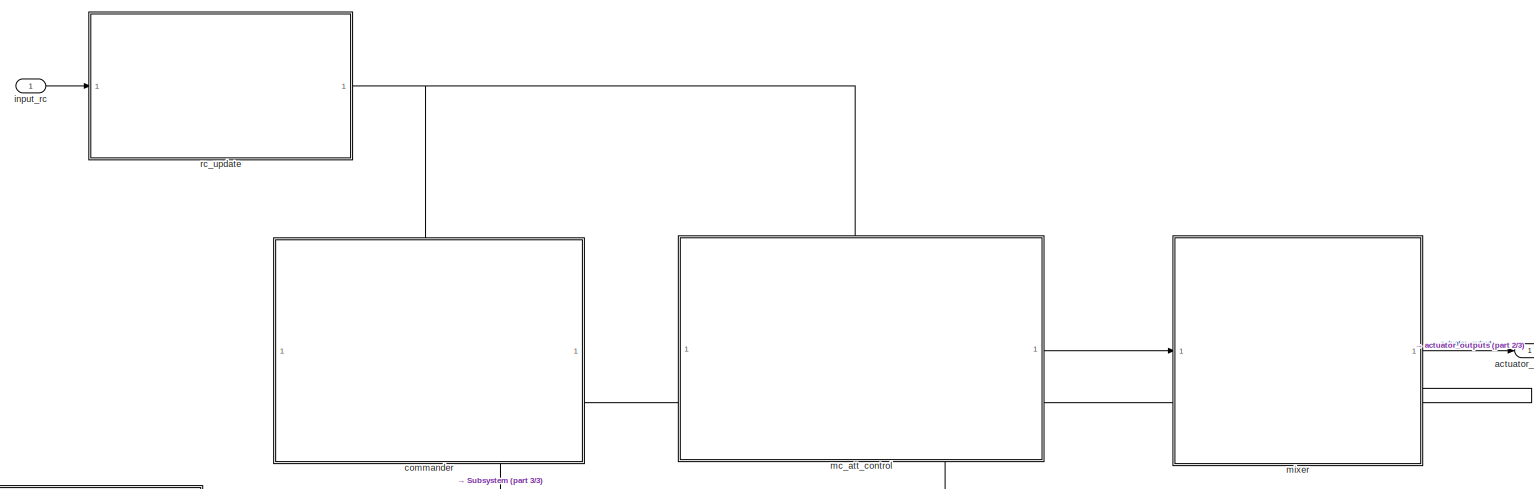
[diagram: root canvas - part 1/3, full width, middle band]
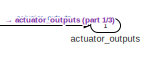
[diagram: root canvas - part 2/3, middle right region]
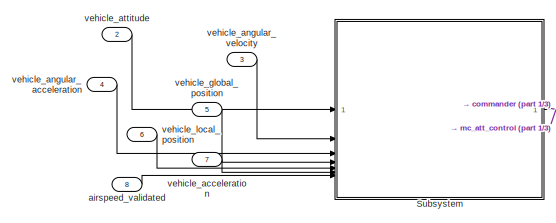
[diagram: root canvas - part 3/3, bottom left region]
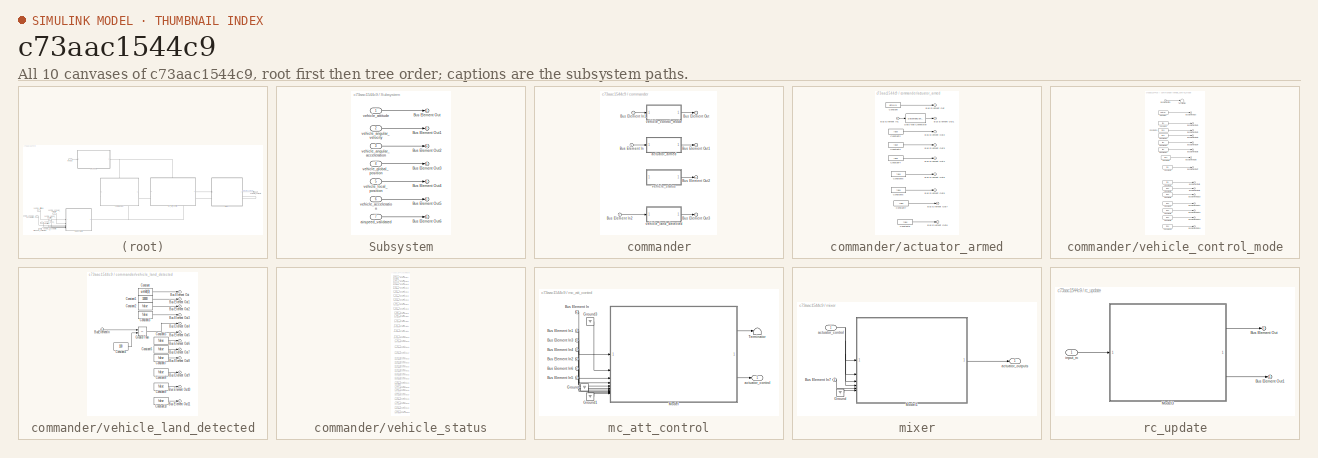
[diagram: thumbnail index - all 10 canvases of the model, root first then tree order]
MODEL slx_c73aac1544c9
KIND model
CONFIG AbsTol = auto
CONFIG EnableMultiTasking = off
CONFIG FixedStep = 0.005
CONFIG MaxStep = auto
CONFIG MinStep = auto
CONFIG RelTol = 1e-3
CONFIG SampleTimeConstraint = Unconstrained
CONFIG SolverName = FixedStepAuto
CONFIG StartTime = 0.0
CONFIG StopTime = 10.0
BLOCK [SubSystem] Subsystem
BLOCK [Outport] Subsystem/Bus Element Out
BLOCK [Outport] Subsystem/Bus Element Out1
BLOCK [Outport] Subsystem/Bus Element Out2
BLOCK [Outport] Subsystem/Bus Element Out3
BLOCK [Outport] Subsystem/Bus Element Out4
BLOCK [Outport] Subsystem/Bus Element Out5
BLOCK [Outport] Subsystem/Bus Element Out6
BLOCK [Inport] Subsystem/airspeed_validated
  Port = 7
BLOCK [Inport] Subsystem/vehicle_acceleration
  Port = 6
BLOCK [Inport] Subsystem/vehicle_angular_acceleration
  Port = 3
BLOCK [Inport] Subsystem/vehicle_angular_velocity
  Port = 2
BLOCK [Inport] Subsystem/vehicle_attitude
BLOCK [Inport] Subsystem/vehicle_global_position
  Port = 4
BLOCK [Inport] Subsystem/vehicle_local_position
  Port = 5
BLOCK [Outport] actuator_outputs
  OutDataTypeStr = Bus: actuator_outputs_s
BLOCK [Inport] airspeed_validated
  OutDataTypeStr = Bus: airspeed_validated_s
  Port = 8
BLOCK [SubSystem] commander
  PortSchema = {"entries":[{"content":{"sides":[{"content":{},"type":"ConnectorPlacement.EquallySpacedRectSide","uuid":"bb59bce1-0500-499a-a754-fb562466c3fb"},{"content":{"side":"RIGHT"},"type":"ConnectorPlacement.EquallySpacedRectSide","uuid":"d03be637-01f7-4508-9bed-614789f3ac84"},{"content":{"connectorIds":["In1"],"side":"TOP"},"type":"ConnectorPlacement.EquallySpacedRectSide","uuid":"40f04b52-742b-4cc1-b867-...<+355ch>
BLOCK [Inport] commander/Bus Element In
BLOCK [Inport] commander/Bus Element In1
BLOCK [Inport] commander/Bus Element In2
  Port = 2
BLOCK [Outport] commander/Bus Element Out
BLOCK [Outport] commander/Bus Element Out1
BLOCK [Outport] commander/Bus Element Out2
BLOCK [Outport] commander/Bus Element Out3
BLOCK [SubSystem] commander/actuator_armed
BLOCK [Inport] commander/actuator_armed/Bus Element In1
BLOCK [Outport] commander/actuator_armed/Bus Element Out
BLOCK [Outport] commander/actuator_armed/Bus Element Out1
BLOCK [Outport] commander/actuator_armed/Bus Element Out2
BLOCK [Outport] commander/actuator_armed/Bus Element Out3
BLOCK [Outport] commander/actuator_armed/Bus Element Out4
BLOCK [Outport] commander/actuator_armed/Bus Element Out5
BLOCK [Outport] commander/actuator_armed/Bus Element Out6
BLOCK [Outport] commander/actuator_armed/Bus Element Out7
BLOCK [Outport] commander/actuator_armed/Bus Element Out8
BLOCK [Constant] commander/actuator_armed/Constant
  Value = uint64(0)
BLOCK [Constant] commander/actuator_armed/Constant2
  Value = false
BLOCK [Constant] commander/actuator_armed/Constant3
  Value = false
BLOCK [Constant] commander/actuator_armed/Constant4
  Value = false
BLOCK [Constant] commander/actuator_armed/Constant5
  Value = false
BLOCK [Constant] commander/actuator_armed/Constant6
  Value = false
BLOCK [Constant] commander/actuator_armed/Constant7
  Value = false
BLOCK [Constant] commander/actuator_armed/Constant8
  Value = false
BLOCK [DataTypeConversion] commander/actuator_armed/Data Type Conversion
  RndMeth = Floor
  SaturateOnIntegerOverflow = off
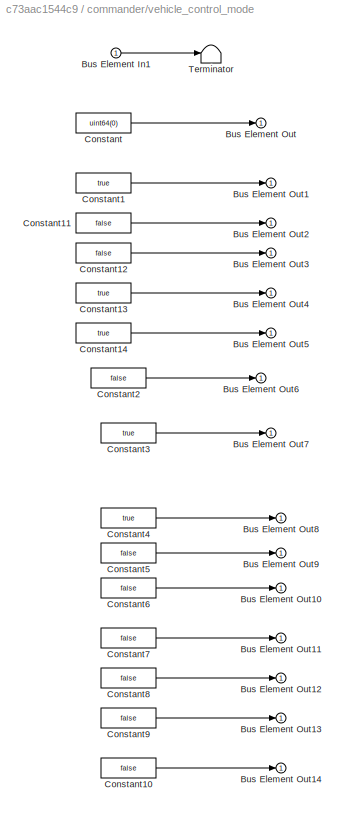
BLOCK [SubSystem] commander/vehicle_control_mode
BLOCK [Inport] commander/vehicle_control_mode/Bus Element In1
BLOCK [Outport] commander/vehicle_control_mode/Bus Element Out
BLOCK [Outport] commander/vehicle_control_mode/Bus Element Out1
BLOCK [Outport] commander/vehicle_control_mode/Bus Element Out10
BLOCK [Outport] commander/vehicle_control_mode/Bus Element Out11
BLOCK [Outport] commander/vehicle_control_mode/Bus Element Out12
BLOCK [Outport] commander/vehicle_control_mode/Bus Element Out13
BLOCK [Outport] commander/vehicle_control_mode/Bus Element Out14
BLOCK [Outport] commander/vehicle_control_mode/Bus Element Out2
BLOCK [Outport] commander/vehicle_control_mode/Bus Element Out3
BLOCK [Outport] commander/vehicle_control_mode/Bus Element Out4
BLOCK [Outport] commander/vehicle_control_mode/Bus Element Out5
BLOCK [Outport] commander/vehicle_control_mode/Bus Element Out6
BLOCK [Outport] commander/vehicle_control_mode/Bus Element Out7
BLOCK [Outport] commander/vehicle_control_mode/Bus Element Out8
BLOCK [Outport] commander/vehicle_control_mode/Bus Element Out9
BLOCK [Constant] commander/vehicle_control_mode/Constant
  Value = uint64(0)
BLOCK [Constant] commander/vehicle_control_mode/Constant1
  Value = true
BLOCK [Constant] commander/vehicle_control_mode/Constant10
  Value = false
BLOCK [Constant] commander/vehicle_control_mode/Constant11
  Value = false
BLOCK [Constant] commander/vehicle_control_mode/Constant12
  Value = false
BLOCK [Constant] commander/vehicle_control_mode/Constant13
  Value = true
BLOCK [Constant] commander/vehicle_control_mode/Constant14
  Value = true
BLOCK [Constant] commander/vehicle_control_mode/Constant2
  Value = false
BLOCK [Constant] commander/vehicle_control_mode/Constant3
  Value = true
BLOCK [Constant] commander/vehicle_control_mode/Constant4
  Value = true
BLOCK [Constant] commander/vehicle_control_mode/Constant5
  Value = false
BLOCK [Constant] commander/vehicle_control_mode/Constant6
  Value = false
BLOCK [Constant] commander/vehicle_control_mode/Constant7
  Value = false
BLOCK [Constant] commander/vehicle_control_mode/Constant8
  Value = false
BLOCK [Constant] commander/vehicle_control_mode/Constant9
  Value = false
BLOCK [Terminator] commander/vehicle_control_mode/Terminator
BLOCK [SubSystem] commander/vehicle_land_detected
BLOCK [Outport] commander/vehicle_land_detected/Bus Element Out
BLOCK [Outport] commander/vehicle_land_detected/Bus Element Out1
BLOCK [Outport] commander/vehicle_land_detected/Bus Element Out10
BLOCK [Outport] commander/vehicle_land_detected/Bus Element Out11
BLOCK [Outport] commander/vehicle_land_detected/Bus Element Out2
BLOCK [Outport] commander/vehicle_land_detected/Bus Element Out3
BLOCK [Outport] commander/vehicle_land_detected/Bus Element Out4
BLOCK [Outport] commander/vehicle_land_detected/Bus Element Out5
BLOCK [Outport] commander/vehicle_land_detected/Bus Element Out6
BLOCK [Outport] commander/vehicle_land_detected/Bus Element Out7
BLOCK [Outport] commander/vehicle_land_detected/Bus Element Out8
BLOCK [Outport] commander/vehicle_land_detected/Bus Element Out9
BLOCK [Inport] commander/vehicle_land_detected/BusElementIn
BLOCK [Constant] commander/vehicle_land_detected/Constant
  Value = uint64(0)
BLOCK [Constant] commander/vehicle_land_detected/Constant1
  OutDataTypeStr = single
  Value = 10000
BLOCK [Constant] commander/vehicle_land_detected/Constant10
  Value = false
BLOCK [Constant] commander/vehicle_land_detected/Constant2
  Value = false
BLOCK [Constant] commander/vehicle_land_detected/Constant3
  Value = false
BLOCK [Constant] commander/vehicle_land_detected/Constant4
  Value = 100
BLOCK [Constant] commander/vehicle_land_detected/Constant5
  Value = false
BLOCK [Constant] commander/vehicle_land_detected/Constant6
  Value = false
BLOCK [Constant] commander/vehicle_land_detected/Constant7
  Value = false
BLOCK [Constant] commander/vehicle_land_detected/Constant8
  Value = false
BLOCK [Constant] commander/vehicle_land_detected/Constant9
  Value = false
BLOCK [RelationalOperator] commander/vehicle_land_detected/GreaterThan
  InputSameDT = off
  Operator = <=
  OutDataTypeStr = boolean
  RndMeth = Simplest
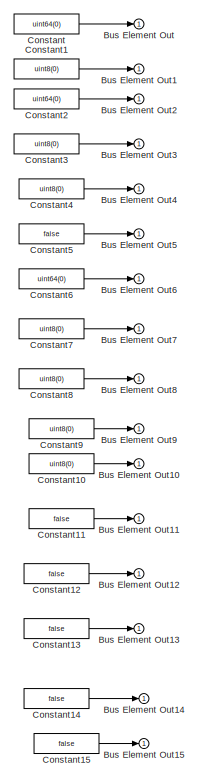
[diagram: commander/vehicle_status - part 1/2, full width, top band]
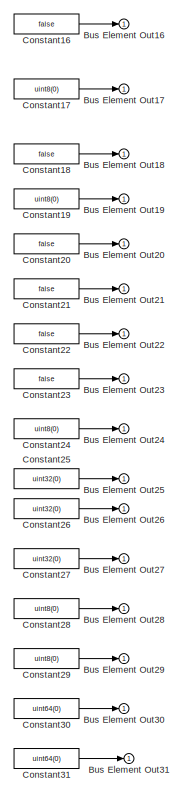
[diagram: commander/vehicle_status - part 2/2, full width, bottom band]
BLOCK [SubSystem] commander/vehicle_status
BLOCK [Outport] commander/vehicle_status/Bus Element Out
BLOCK [Outport] commander/vehicle_status/Bus Element Out1
BLOCK [Outport] commander/vehicle_status/Bus Element Out10
BLOCK [Outport] commander/vehicle_status/Bus Element Out11
BLOCK [Outport] commander/vehicle_status/Bus Element Out12
BLOCK [Outport] commander/vehicle_status/Bus Element Out13
BLOCK [Outport] commander/vehicle_status/Bus Element Out14
BLOCK [Outport] commander/vehicle_status/Bus Element Out15
BLOCK [Outport] commander/vehicle_status/Bus Element Out16
BLOCK [Outport] commander/vehicle_status/Bus Element Out17
BLOCK [Outport] commander/vehicle_status/Bus Element Out18
BLOCK [Outport] commander/vehicle_status/Bus Element Out19
BLOCK [Outport] commander/vehicle_status/Bus Element Out2
BLOCK [Outport] commander/vehicle_status/Bus Element Out20
BLOCK [Outport] commander/vehicle_status/Bus Element Out21
BLOCK [Outport] commander/vehicle_status/Bus Element Out22
BLOCK [Outport] commander/vehicle_status/Bus Element Out23
BLOCK [Outport] commander/vehicle_status/Bus Element Out24
BLOCK [Outport] commander/vehicle_status/Bus Element Out25
BLOCK [Outport] commander/vehicle_status/Bus Element Out26
BLOCK [Outport] commander/vehicle_status/Bus Element Out27
BLOCK [Outport] commander/vehicle_status/Bus Element Out28
BLOCK [Outport] commander/vehicle_status/Bus Element Out29
BLOCK [Outport] commander/vehicle_status/Bus Element Out3
BLOCK [Outport] commander/vehicle_status/Bus Element Out30
BLOCK [Outport] commander/vehicle_status/Bus Element Out31
BLOCK [Outport] commander/vehicle_status/Bus Element Out4
BLOCK [Outport] commander/vehicle_status/Bus Element Out5
BLOCK [Outport] commander/vehicle_status/Bus Element Out6
BLOCK [Outport] commander/vehicle_status/Bus Element Out7
BLOCK [Outport] commander/vehicle_status/Bus Element Out8
BLOCK [Outport] commander/vehicle_status/Bus Element Out9
BLOCK [Constant] commander/vehicle_status/Constant
  Value = uint64(0)
BLOCK [Constant] commander/vehicle_status/Constant1
  Value = uint8(0)
BLOCK [Constant] commander/vehicle_status/Constant10
  Value = uint8(0)
BLOCK [Constant] commander/vehicle_status/Constant11
  Value = false
BLOCK [Constant] commander/vehicle_status/Constant12
  Value = false
BLOCK [Constant] commander/vehicle_status/Constant13
  Value = false
BLOCK [Constant] commander/vehicle_status/Constant14
  Value = false
BLOCK [Constant] commander/vehicle_status/Constant15
  Value = false
BLOCK [Constant] commander/vehicle_status/Constant16
  Value = false
BLOCK [Constant] commander/vehicle_status/Constant17
  Value = uint8(0)
BLOCK [Constant] commander/vehicle_status/Constant18
  Value = false
BLOCK [Constant] commander/vehicle_status/Constant19
  Value = uint8(0)
BLOCK [Constant] commander/vehicle_status/Constant2
  Value = uint64(0)
BLOCK [Constant] commander/vehicle_status/Constant20
  Value = false
BLOCK [Constant] commander/vehicle_status/Constant21
  Value = false
BLOCK [Constant] commander/vehicle_status/Constant22
  Value = false
BLOCK [Constant] commander/vehicle_status/Constant23
  Value = false
BLOCK [Constant] commander/vehicle_status/Constant24
  Value = uint8(0)
BLOCK [Constant] commander/vehicle_status/Constant25
  Value = uint32(0)
BLOCK [Constant] commander/vehicle_status/Constant26
  Value = uint32(0)
BLOCK [Constant] commander/vehicle_status/Constant27
  Value = uint32(0)
BLOCK [Constant] commander/vehicle_status/Constant28
  Value = uint8(0)
BLOCK [Constant] commander/vehicle_status/Constant29
  Value = uint8(0)
BLOCK [Constant] commander/vehicle_status/Constant3
  Value = uint8(0)
BLOCK [Constant] commander/vehicle_status/Constant30
  Value = uint64(0)
BLOCK [Constant] commander/vehicle_status/Constant31
  Value = uint64(0)
BLOCK [Constant] commander/vehicle_status/Constant4
  Value = uint8(0)
BLOCK [Constant] commander/vehicle_status/Constant5
  Value = false
BLOCK [Constant] commander/vehicle_status/Constant6
  Value = uint64(0)
BLOCK [Constant] commander/vehicle_status/Constant7
  Value = uint8(0)
BLOCK [Constant] commander/vehicle_status/Constant8
  Value = uint8(0)
BLOCK [Constant] commander/vehicle_status/Constant9
  Value = uint8(0)
BLOCK [Inport] input_rc
  OutDataTypeStr = Bus: input_rc_s
BLOCK [SubSystem] mc_att_control
  PortSchema = {"entries":[{"content":{"sides":[{"content":{},"type":"ConnectorPlacement.EquallySpacedRectSide","uuid":"8cc7357a-ade9-4fca-b691-0bf58c66e2d0"},{"content":{"connectorIds":["Out1"],"side":"RIGHT"},"type":"ConnectorPlacement.EquallySpacedRectSide","uuid":"b5274986-9954-46fa-b3dc-c31aff903af8"},{"content":{"connectorIds":["In1"],"side":"TOP"},"type":"ConnectorPlacement.EquallySpacedRectSide","uuid":"...<+378ch>
BLOCK [Inport] mc_att_control/Bus Element In
BLOCK [Inport] mc_att_control/Bus Element In1
  Port = 3
BLOCK [Inport] mc_att_control/Bus Element In2
  Port = 2
BLOCK [Inport] mc_att_control/Bus Element In3
  Port = 3
BLOCK [Inport] mc_att_control/Bus Element In4
  Port = 3
BLOCK [Inport] mc_att_control/Bus Element In5
  Port = 2
BLOCK [Inport] mc_att_control/Bus Element In6
  Port = 2
BLOCK [Ground] mc_att_control/Ground
BLOCK [Ground] mc_att_control/Ground1
BLOCK [Ground] mc_att_control/Ground3
BLOCK [ModelReference] mc_att_control/Model
  ModelNameDialog = mc_att_control.slx
  ModelReferenceVersion = 8.104
BLOCK [Terminator] mc_att_control/Terminator
BLOCK [Outport] mc_att_control/actuator_control
BLOCK [SubSystem] mixer
  PortSchema = {"entries":[{"content":{"sides":[{"content":{"connectorIds":["In1"]},"type":"ConnectorPlacement.EquallySpacedRectSide","uuid":"3d420975-d52f-4ea6-b135-49495d2f3a48"},{"content":{"connectorIds":["Out1"],"side":"RIGHT"},"type":"ConnectorPlacement.EquallySpacedRectSide","uuid":"d9c1bfac-a917-4933-9fdf-1d1fd6628fe1"},{"content":{"side":"TOP"},"type":"ConnectorPlacement.EquallySpacedRectSide","uuid":"d...<+371ch>
BLOCK [Inport] mixer/Bus Element In7
  Port = 2
BLOCK [Ground] mixer/Ground
BLOCK [ModelReference] mixer/Model1
  ModelNameDialog = mixer.slx
  ModelReferenceVersion = 1.82
BLOCK [Inport] mixer/actuator_control
BLOCK [Outport] mixer/actuator_outputs
BLOCK [SubSystem] rc_update
BLOCK [Outport] rc_update/Bus Element Out
BLOCK [Outport] rc_update/Bus Element Out1
BLOCK [ModelReference] rc_update/Model3
  ModelNameDialog = rc_update.slx
  ModelReferenceVersion = 8.43
BLOCK [Inport] rc_update/input_rc
BLOCK [Inport] vehicle_acceleration
  OutDataTypeStr = Bus: vehicle_acceleration_s
  Port = 7
BLOCK [Inport] vehicle_angular_acceleration
  OutDataTypeStr = Bus: vehicle_angular_acceleration_s
  Port = 4
BLOCK [Inport] vehicle_angular_velocity
  OutDataTypeStr = Bus: vehicle_angular_velocity_s
  Port = 3
BLOCK [Inport] vehicle_attitude
  OutDataTypeStr = Bus: vehicle_attitude_s
  Port = 2
BLOCK [Inport] vehicle_global_position
  OutDataTypeStr = Bus: vehicle_global_position_s
  Port = 5
BLOCK [Inport] vehicle_local_position
  OutDataTypeStr = Bus: vehicle_local_position_s
  Port = 6
LINE Subsystem/airspeed_validated:1 -> Subsystem/Bus Element Out6:1
LINE Subsystem/vehicle_acceleration:1 -> Subsystem/Bus Element Out5:1
LINE Subsystem/vehicle_angular_acceleration:1 -> Subsystem/Bus Element Out2:1
LINE Subsystem/vehicle_angular_velocity:1 -> Subsystem/Bus Element Out1:1
LINE Subsystem/vehicle_attitude:1 -> Subsystem/Bus Element Out:1
LINE Subsystem/vehicle_global_position:1 -> Subsystem/Bus Element Out3:1
LINE Subsystem/vehicle_local_position:1 -> Subsystem/Bus Element Out4:1
NET Subsystem:1 -> commander:2, mc_att_control:3
LINE airspeed_validated:1 -> Subsystem:7
LINE commander/Bus Element In1:1 -> commander/vehicle_control_mode:1
LINE commander/Bus Element In2:1 -> commander/vehicle_land_detected:1
LINE commander/Bus Element In:1 -> commander/actuator_armed:1
LINE commander/actuator_armed/Bus Element In1:1 -> commander/actuator_armed/Data Type Conversion:1
LINE commander/actuator_armed/Constant2:1 -> commander/actuator_armed/Bus Element Out2:1
LINE commander/actuator_armed/Constant3:1 -> commander/actuator_armed/Bus Element Out3:1
LINE commander/actuator_armed/Constant4:1 -> commander/actuator_armed/Bus Element Out4:1
LINE commander/actuator_armed/Constant5:1 -> commander/actuator_armed/Bus Element Out5:1
LINE commander/actuator_armed/Constant6:1 -> commander/actuator_armed/Bus Element Out6:1
LINE commander/actuator_armed/Constant7:1 -> commander/actuator_armed/Bus Element Out7:1
LINE commander/actuator_armed/Constant8:1 -> commander/actuator_armed/Bus Element Out8:1
LINE commander/actuator_armed/Constant:1 -> commander/actuator_armed/Bus Element Out:1
LINE commander/actuator_armed/Data Type Conversion:1 -> commander/actuator_armed/Bus Element Out1:1
LINE commander/actuator_armed:1 -> commander/Bus Element Out1:1
LINE commander/vehicle_control_mode/Bus Element In1:1 -> commander/vehicle_control_mode/Terminator:1
LINE commander/vehicle_control_mode/Constant10:1 -> commander/vehicle_control_mode/Bus Element Out14:1
LINE commander/vehicle_control_mode/Constant11:1 -> commander/vehicle_control_mode/Bus Element Out2:1
LINE commander/vehicle_control_mode/Constant12:1 -> commander/vehicle_control_mode/Bus Element Out3:1
LINE commander/vehicle_control_mode/Constant13:1 -> commander/vehicle_control_mode/Bus Element Out4:1
LINE commander/vehicle_control_mode/Constant14:1 -> commander/vehicle_control_mode/Bus Element Out5:1
LINE commander/vehicle_control_mode/Constant1:1 -> commander/vehicle_control_mode/Bus Element Out1:1
LINE commander/vehicle_control_mode/Constant2:1 -> commander/vehicle_control_mode/Bus Element Out6:1
LINE commander/vehicle_control_mode/Constant3:1 -> commander/vehicle_control_mode/Bus Element Out7:1
LINE commander/vehicle_control_mode/Constant4:1 -> commander/vehicle_control_mode/Bus Element Out8:1
LINE commander/vehicle_control_mode/Constant5:1 -> commander/vehicle_control_mode/Bus Element Out9:1
LINE commander/vehicle_control_mode/Constant6:1 -> commander/vehicle_control_mode/Bus Element Out10:1
LINE commander/vehicle_control_mode/Constant7:1 -> commander/vehicle_control_mode/Bus Element Out11:1
LINE commander/vehicle_control_mode/Constant8:1 -> commander/vehicle_control_mode/Bus Element Out12:1
LINE commander/vehicle_control_mode/Constant9:1 -> commander/vehicle_control_mode/Bus Element Out13:1
LINE commander/vehicle_control_mode/Constant:1 -> commander/vehicle_control_mode/Bus Element Out:1
LINE commander/vehicle_control_mode:1 -> commander/Bus Element Out:1
LINE commander/vehicle_land_detected/BusElementIn:1 -> commander/vehicle_land_detected/GreaterThan:1
LINE commander/vehicle_land_detected/Constant10:1 -> commander/vehicle_land_detected/Bus Element Out11:1
LINE commander/vehicle_land_detected/Constant1:1 -> commander/vehicle_land_detected/Bus Element Out1:1
LINE commander/vehicle_land_detected/Constant2:1 -> commander/vehicle_land_detected/Bus Element Out2:1
LINE commander/vehicle_land_detected/Constant3:1 -> commander/vehicle_land_detected/Bus Element Out3:1
LINE commander/vehicle_land_detected/Constant4:1 -> commander/vehicle_land_detected/GreaterThan:2
LINE commander/vehicle_land_detected/Constant5:1 -> commander/vehicle_land_detected/Bus Element Out6:1
LINE commander/vehicle_land_detected/Constant6:1 -> commander/vehicle_land_detected/Bus Element Out7:1
LINE commander/vehicle_land_detected/Constant7:1 -> commander/vehicle_land_detected/Bus Element Out8:1
LINE commander/vehicle_land_detected/Constant8:1 -> commander/vehicle_land_detected/Bus Element Out9:1
LINE commander/vehicle_land_detected/Constant9:1 -> commander/vehicle_land_detected/Bus Element Out10:1
LINE commander/vehicle_land_detected/Constant:1 -> commander/vehicle_land_detected/Bus Element Out:1
NET commander/vehicle_land_detected/GreaterThan:1 -> commander/vehicle_land_detected/Bus Element Out4:1, commander/vehicle_land_detected/Bus Element Out5:1
LINE commander/vehicle_land_detected:1 -> commander/Bus Element Out3:1
LINE commander/vehicle_status/Constant10:1 -> commander/vehicle_status/Bus Element Out10:1
LINE commander/vehicle_status/Constant11:1 -> commander/vehicle_status/Bus Element Out11:1
LINE commander/vehicle_status/Constant12:1 -> commander/vehicle_status/Bus Element Out12:1
LINE commander/vehicle_status/Constant13:1 -> commander/vehicle_status/Bus Element Out13:1
LINE commander/vehicle_status/Constant14:1 -> commander/vehicle_status/Bus Element Out14:1
LINE commander/vehicle_status/Constant15:1 -> commander/vehicle_status/Bus Element Out15:1
LINE commander/vehicle_status/Constant16:1 -> commander/vehicle_status/Bus Element Out16:1
LINE commander/vehicle_status/Constant17:1 -> commander/vehicle_status/Bus Element Out17:1
LINE commander/vehicle_status/Constant18:1 -> commander/vehicle_status/Bus Element Out18:1
LINE commander/vehicle_status/Constant19:1 -> commander/vehicle_status/Bus Element Out19:1
LINE commander/vehicle_status/Constant1:1 -> commander/vehicle_status/Bus Element Out1:1
LINE commander/vehicle_status/Constant20:1 -> commander/vehicle_status/Bus Element Out20:1
LINE commander/vehicle_status/Constant21:1 -> commander/vehicle_status/Bus Element Out21:1
LINE commander/vehicle_status/Constant22:1 -> commander/vehicle_status/Bus Element Out22:1
LINE commander/vehicle_status/Constant23:1 -> commander/vehicle_status/Bus Element Out23:1
LINE commander/vehicle_status/Constant24:1 -> commander/vehicle_status/Bus Element Out24:1
LINE commander/vehicle_status/Constant25:1 -> commander/vehicle_status/Bus Element Out25:1
LINE commander/vehicle_status/Constant26:1 -> commander/vehicle_status/Bus Element Out26:1
LINE commander/vehicle_status/Constant27:1 -> commander/vehicle_status/Bus Element Out27:1
LINE commander/vehicle_status/Constant28:1 -> commander/vehicle_status/Bus Element Out28:1
LINE commander/vehicle_status/Constant29:1 -> commander/vehicle_status/Bus Element Out29:1
LINE commander/vehicle_status/Constant2:1 -> commander/vehicle_status/Bus Element Out2:1
LINE commander/vehicle_status/Constant30:1 -> commander/vehicle_status/Bus Element Out30:1
LINE commander/vehicle_status/Constant31:1 -> commander/vehicle_status/Bus Element Out31:1
LINE commander/vehicle_status/Constant3:1 -> commander/vehicle_status/Bus Element Out3:1
LINE commander/vehicle_status/Constant4:1 -> commander/vehicle_status/Bus Element Out4:1
LINE commander/vehicle_status/Constant5:1 -> commander/vehicle_status/Bus Element Out5:1
LINE commander/vehicle_status/Constant6:1 -> commander/vehicle_status/Bus Element Out6:1
LINE commander/vehicle_status/Constant7:1 -> commander/vehicle_status/Bus Element Out7:1
LINE commander/vehicle_status/Constant8:1 -> commander/vehicle_status/Bus Element Out8:1
LINE commander/vehicle_status/Constant9:1 -> commander/vehicle_status/Bus Element Out9:1
LINE commander/vehicle_status/Constant:1 -> commander/vehicle_status/Bus Element Out:1
LINE commander/vehicle_status:1 -> commander/Bus Element Out2:1
NET commander:1 -> mc_att_control:2, mixer:2
LINE input_rc:1 -> rc_update:1
LINE mc_att_control/Bus Element In1:1 -> mc_att_control/Model:3
LINE mc_att_control/Bus Element In2:1 -> mc_att_control/Model:6
LINE mc_att_control/Bus Element In3:1 -> mc_att_control/Model:4
LINE mc_att_control/Bus Element In4:1 -> mc_att_control/Model:5
LINE mc_att_control/Bus Element In5:1 -> mc_att_control/Model:8
LINE mc_att_control/Bus Element In6:1 -> mc_att_control/Model:7
LINE mc_att_control/Bus Element In:1 -> mc_att_control/Model:1
LINE mc_att_control/Ground1:1 -> mc_att_control/Model:10
LINE mc_att_control/Ground3:1 -> mc_att_control/Model:2
LINE mc_att_control/Ground:1 -> mc_att_control/Model:9
LINE mc_att_control/Model:1 -> mc_att_control/Terminator:1
LINE mc_att_control/Model:2 -> mc_att_control/actuator_control:1
LINE mc_att_control:1 -> mixer:1
LINE mixer/Bus Element In7:1 -> mixer/Model1:5
LINE mixer/Ground:1 -> mixer/Model1:6
LINE mixer/Model1:1 -> mixer/actuator_outputs:1
NET mixer/actuator_control:1 -> mixer/Model1:1, mixer/Model1:2, mixer/Model1:3, mixer/Model1:4
LINE mixer:1 -> actuator_outputs:1
LINE rc_update/Model3:1 -> rc_update/Bus Element Out:1
LINE rc_update/Model3:2 -> rc_update/Bus Element Out1:1
LINE rc_update/input_rc:1 -> rc_update/Model3:1
NET rc_update:1 -> commander:1, mc_att_control:1
LINE vehicle_acceleration:1 -> Subsystem:6
LINE vehicle_angular_acceleration:1 -> Subsystem:3
LINE vehicle_angular_velocity:1 -> Subsystem:2
LINE vehicle_attitude:1 -> Subsystem:1
LINE vehicle_global_position:1 -> Subsystem:4
LINE vehicle_local_position:1 -> Subsystem:5
note: NET lines group one-source signal fan-out (src -> all destinations, sorted); 1:1 wires keep LINE
